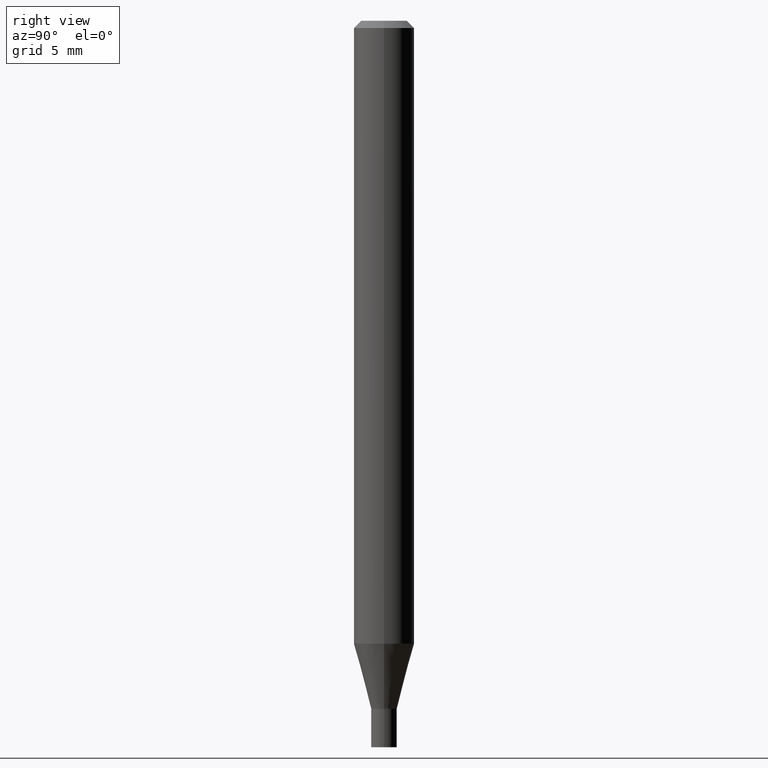
[diagram: clean part render]
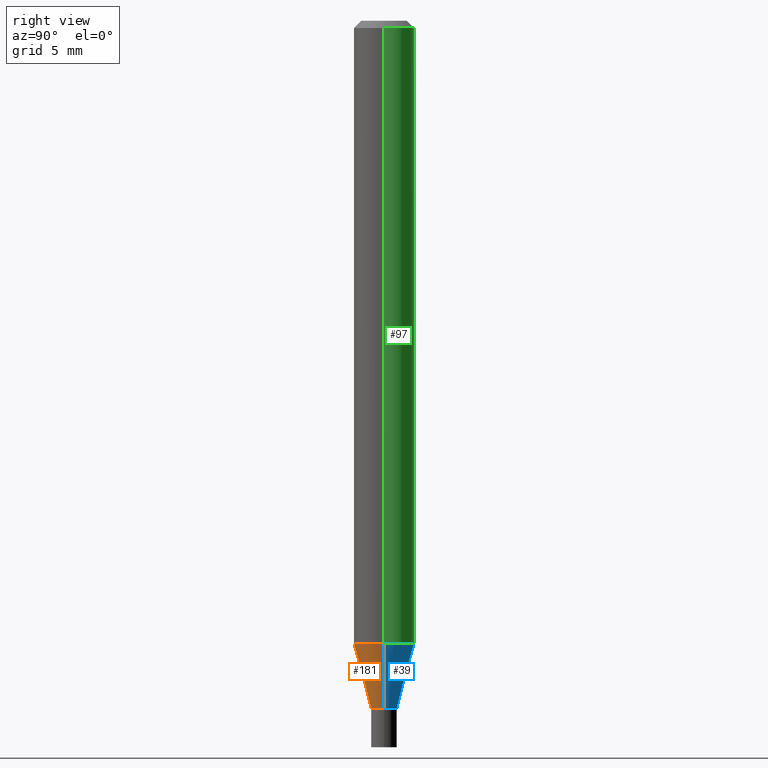
[diagram: same view with three faces highlighted in distinct colors, each labeled with its STEP entity id]
A machine part, right view with three faces highlighted in distinct colors.
Their STEP definitions:

[orange] entity #181 — the highlighted conical surface has half-angle 15 deg.
#32 = ORIENTED_EDGE ( 'NONE', *, *, #270, .F. ) ;
#42 = LINE ( 'NONE', #398, #353 ) ;
#66 = ORIENTED_EDGE ( 'NONE', *, *, #147, .F. ) ;
#67 = DIRECTION ( 'NONE',  ( 1.000000000000000000, -6.982962677686262766E-15, 0.000000000000000000 ) ) ;
#70 = ORIENTED_EDGE ( 'NONE', *, *, #101, .T. ) ;
#79 = LINE ( 'NONE', #112, #394 ) ;
#80 = DIRECTION ( 'NONE',  ( -0.2588190451025215721, 5.211531920934551831E-15, 0.9659258262890679791 ) ) ;
#81 = CONICAL_SURFACE ( 'NONE', #448, 0.02650000000000020048, 0.2617993877991502960 ) ;
#88 = DIRECTION ( 'NONE',  ( -2.445468806185136597E-29, 3.491481338843145583E-15, 1.000000000000000000 ) ) ;
#95 = CARTESIAN_POINT ( 'NONE',  ( 3.473788439185986455E-29, -4.959649241826688854E-15, -1.420500000000000096 ) ) ;
#99 = CARTESIAN_POINT ( 'NONE',  ( 3.145230341197711015E-29, -4.490555354818009189E-15, -1.286146170927521704 ) ) ;
#101 = EDGE_CURVE ( 'NONE', #462, #423, #344, .T. ) ;
#112 = CARTESIAN_POINT ( 'NONE',  ( 0.02650000000000020048, -5.144697752785376121E-15, -1.420500000000000096 ) ) ;
#119 = AXIS2_PLACEMENT_3D ( 'NONE', #95, #88, #373 ) ;
#145 = CARTESIAN_POINT ( 'NONE',  ( -0.06250000000000000000, -4.046466144967945784E-15, -1.286146170927521704 ) ) ;
#147 = EDGE_CURVE ( 'NONE', #311, #167, #202, .T. ) ;
#167 = VERTEX_POINT ( 'NONE', #203 ) ;
#181 = ADVANCED_FACE ( 'NONE', ( #466 ), #81, .T. ) ;
#202 = CIRCLE ( 'NONE', #298, 0.06250000000000000000 ) ;
#203 = CARTESIAN_POINT ( 'NONE',  ( 0.06250000000000000000, -4.926990522173400069E-15, -1.286146170927521704 ) ) ;
#270 = EDGE_CURVE ( 'NONE', #462, #311, #42, .T. ) ;
#278 = DIRECTION ( 'NONE',  ( 1.000000000000000000, -6.982962677686261977E-15, 0.000000000000000000 ) ) ;
#285 = ORIENTED_EDGE ( 'NONE', *, *, #375, .T. ) ;
#297 = CARTESIAN_POINT ( 'NONE',  ( -0.02650000000000020048, -4.408910780909102975E-15, -1.420500000000000096 ) ) ;
#298 = AXIS2_PLACEMENT_3D ( 'NONE', #99, #315, #67 ) ;
#311 = VERTEX_POINT ( 'NONE', #145 ) ;
#314 = CARTESIAN_POINT ( 'NONE',  ( 3.473788439185986455E-29, -4.959649241826688854E-15, -1.420500000000000096 ) ) ;
#315 = DIRECTION ( 'NONE',  ( -2.445468806185136597E-29, 3.491481338843145583E-15, 1.000000000000000000 ) ) ;
#318 = CARTESIAN_POINT ( 'NONE',  ( 0.02650000000000020048, -5.144697752785376121E-15, -1.420500000000000096 ) ) ;
#344 = CIRCLE ( 'NONE', #119, 0.02650000000000020048 ) ;
#348 = DIRECTION ( 'NONE',  ( -2.445468806185136597E-29, 3.491481338843145583E-15, 1.000000000000000000 ) ) ;
#353 = VECTOR ( 'NONE', #80, 39.37007874015748143 ) ;
#373 = DIRECTION ( 'NONE',  ( 1.000000000000000000, -6.982962677686261977E-15, 0.000000000000000000 ) ) ;
#375 = EDGE_CURVE ( 'NONE', #423, #167, #79, .T. ) ;
#383 = EDGE_LOOP ( 'NONE', ( #32, #70, #285, #66 ) ) ;
#394 = VECTOR ( 'NONE', #434, 39.37007874015748143 ) ;
#398 = CARTESIAN_POINT ( 'NONE',  ( -0.02650000000000020048, -4.771355416850260165E-15, -1.420500000000000096 ) ) ;
#423 = VERTEX_POINT ( 'NONE', #318 ) ;
#434 = DIRECTION ( 'NONE',  ( 0.2588190451025215721, 1.565188264969619995E-15, 0.9659258262890679791 ) ) ;
#448 = AXIS2_PLACEMENT_3D ( 'NONE', #314, #348, #278 ) ;
#462 = VERTEX_POINT ( 'NONE', #297 ) ;
#466 = FACE_OUTER_BOUND ( 'NONE', #383, .T. ) ;

[blue] entity #39 — the highlighted conical surface has half-angle 15 deg.
#27 = ORIENTED_EDGE ( 'NONE', *, *, #144, .F. ) ;
#39 = ADVANCED_FACE ( 'NONE', ( #288 ), #441, .T. ) ;
#42 = LINE ( 'NONE', #398, #353 ) ;
#52 = CARTESIAN_POINT ( 'NONE',  ( 3.473788439185986455E-29, -4.959649241826688854E-15, -1.420500000000000096 ) ) ;
#59 = AXIS2_PLACEMENT_3D ( 'NONE', #108, #243, #392 ) ;
#79 = LINE ( 'NONE', #112, #394 ) ;
#80 = DIRECTION ( 'NONE',  ( -0.2588190451025215721, 5.211531920934551831E-15, 0.9659258262890679791 ) ) ;
#108 = CARTESIAN_POINT ( 'NONE',  ( 3.473788439185986455E-29, -4.959649241826688854E-15, -1.420500000000000096 ) ) ;
#112 = CARTESIAN_POINT ( 'NONE',  ( 0.02650000000000020048, -5.144697752785376121E-15, -1.420500000000000096 ) ) ;
#133 = DIRECTION ( 'NONE',  ( 1.000000000000000000, -6.982962677686262766E-15, 0.000000000000000000 ) ) ;
#144 = EDGE_CURVE ( 'NONE', #167, #311, #365, .T. ) ;
#145 = CARTESIAN_POINT ( 'NONE',  ( -0.06250000000000000000, -4.046466144967945784E-15, -1.286146170927521704 ) ) ;
#146 = DIRECTION ( 'NONE',  ( 1.000000000000000000, -6.982962677686261977E-15, 0.000000000000000000 ) ) ;
#164 = ORIENTED_EDGE ( 'NONE', *, *, #270, .T. ) ;
#167 = VERTEX_POINT ( 'NONE', #203 ) ;
#203 = CARTESIAN_POINT ( 'NONE',  ( 0.06250000000000000000, -4.926990522173400069E-15, -1.286146170927521704 ) ) ;
#230 = EDGE_CURVE ( 'NONE', #423, #462, #345, .T. ) ;
#232 = AXIS2_PLACEMENT_3D ( 'NONE', #382, #459, #133 ) ;
#243 = DIRECTION ( 'NONE',  ( -2.445468806185136597E-29, 3.491481338843145583E-15, 1.000000000000000000 ) ) ;
#270 = EDGE_CURVE ( 'NONE', #462, #311, #42, .T. ) ;
#283 = ORIENTED_EDGE ( 'NONE', *, *, #230, .T. ) ;
#284 = AXIS2_PLACEMENT_3D ( 'NONE', #52, #401, #146 ) ;
#288 = FACE_OUTER_BOUND ( 'NONE', #439, .T. ) ;
#297 = CARTESIAN_POINT ( 'NONE',  ( -0.02650000000000020048, -4.408910780909102975E-15, -1.420500000000000096 ) ) ;
#311 = VERTEX_POINT ( 'NONE', #145 ) ;
#317 = ORIENTED_EDGE ( 'NONE', *, *, #375, .F. ) ;
#318 = CARTESIAN_POINT ( 'NONE',  ( 0.02650000000000020048, -5.144697752785376121E-15, -1.420500000000000096 ) ) ;
#345 = CIRCLE ( 'NONE', #59, 0.02650000000000020048 ) ;
#353 = VECTOR ( 'NONE', #80, 39.37007874015748143 ) ;
#365 = CIRCLE ( 'NONE', #232, 0.06250000000000000000 ) ;
#375 = EDGE_CURVE ( 'NONE', #423, #167, #79, .T. ) ;
#382 = CARTESIAN_POINT ( 'NONE',  ( 3.145230341197711015E-29, -4.490555354818009189E-15, -1.286146170927521704 ) ) ;
#392 = DIRECTION ( 'NONE',  ( 1.000000000000000000, -6.982962677686261977E-15, 0.000000000000000000 ) ) ;
#394 = VECTOR ( 'NONE', #434, 39.37007874015748143 ) ;
#398 = CARTESIAN_POINT ( 'NONE',  ( -0.02650000000000020048, -4.771355416850260165E-15, -1.420500000000000096 ) ) ;
#401 = DIRECTION ( 'NONE',  ( -2.445468806185136597E-29, 3.491481338843145583E-15, 1.000000000000000000 ) ) ;
#423 = VERTEX_POINT ( 'NONE', #318 ) ;
#434 = DIRECTION ( 'NONE',  ( 0.2588190451025215721, 1.565188264969619995E-15, 0.9659258262890679791 ) ) ;
#439 = EDGE_LOOP ( 'NONE', ( #283, #164, #27, #317 ) ) ;
#441 = CONICAL_SURFACE ( 'NONE', #284, 0.02650000000000020048, 0.2617993877991502960 ) ;
#459 = DIRECTION ( 'NONE',  ( -2.445468806185136597E-29, 3.491481338843145583E-15, 1.000000000000000000 ) ) ;
#462 = VERTEX_POINT ( 'NONE', #297 ) ;

[green] entity #97 — the highlighted cylindrical surface (edge-blend (fillet) strip) has radius 1.5875 mm, axis along (-0, 0, 1).
#35 = CARTESIAN_POINT ( 'NONE',  ( 0.06250000000000000000, -4.364351673553916694E-16, 3.047610484872459871E-30 ) ) ;
#37 = EDGE_LOOP ( 'NONE', ( #236, #303, #279, #169 ) ) ;
#89 = DIRECTION ( 'NONE',  ( -2.445468806185136597E-29, 3.491481338843145583E-15, 1.000000000000000000 ) ) ;
#97 = ADVANCED_FACE ( 'NONE', ( #254 ), #176, .T. ) ;
#133 = DIRECTION ( 'NONE',  ( 1.000000000000000000, -6.982962677686262766E-15, 0.000000000000000000 ) ) ;
#142 = VECTOR ( 'NONE', #242, 39.37007874015748143 ) ;
#144 = EDGE_CURVE ( 'NONE', #167, #311, #365, .T. ) ;
#145 = CARTESIAN_POINT ( 'NONE',  ( -0.06250000000000000000, -4.046466144967945784E-15, -1.286146170927521704 ) ) ;
#156 = DIRECTION ( 'NONE',  ( 1.000000000000000000, -6.982962677686266711E-15, 4.876176775795935793E-29 ) ) ;
#166 = LINE ( 'NONE', #426, #142 ) ;
#167 = VERTEX_POINT ( 'NONE', #203 ) ;
#169 = ORIENTED_EDGE ( 'NONE', *, *, #178, .F. ) ;
#170 = CARTESIAN_POINT ( 'NONE',  ( 0.06250000000000000000, -4.888073874380388472E-16, -0.01499999999999999944 ) ) ;
#172 = VERTEX_POINT ( 'NONE', #170 ) ;
#176 = CYLINDRICAL_SURFACE ( 'NONE', #221, 0.06250000000000000000 ) ;
#178 = EDGE_CURVE ( 'NONE', #167, #172, #211, .T. ) ;
#191 = AXIS2_PLACEMENT_3D ( 'NONE', #366, #218, #328 ) ;
#195 = EDGE_CURVE ( 'NONE', #311, #226, #166, .T. ) ;
#203 = CARTESIAN_POINT ( 'NONE',  ( 0.06250000000000000000, -4.926990522173400069E-15, -1.286146170927521704 ) ) ;
#211 = LINE ( 'NONE', #35, #277 ) ;
#218 = DIRECTION ( 'NONE',  ( -2.445468806185136597E-29, 3.491481338843145583E-15, 1.000000000000000000 ) ) ;
#221 = AXIS2_PLACEMENT_3D ( 'NONE', #325, #89, #156 ) ;
#226 = VERTEX_POINT ( 'NONE', #359 ) ;
#232 = AXIS2_PLACEMENT_3D ( 'NONE', #382, #459, #133 ) ;
#236 = ORIENTED_EDGE ( 'NONE', *, *, #144, .T. ) ;
#242 = DIRECTION ( 'NONE',  ( -2.445468806185136877E-29, 3.491481338843145188E-15, 1.000000000000000000 ) ) ;
#254 = FACE_OUTER_BOUND ( 'NONE', #37, .T. ) ;
#277 = VECTOR ( 'NONE', #465, 39.37007874015748143 ) ;
#279 = ORIENTED_EDGE ( 'NONE', *, *, #399, .F. ) ;
#303 = ORIENTED_EDGE ( 'NONE', *, *, #195, .T. ) ;
#311 = VERTEX_POINT ( 'NONE', #145 ) ;
#325 = CARTESIAN_POINT ( 'NONE',  ( 0.000000000000000000, 0.000000000000000000, 0.000000000000000000 ) ) ;
#328 = DIRECTION ( 'NONE',  ( 1.000000000000000000, -6.982962677686266711E-15, 0.000000000000000000 ) ) ;
#359 = CARTESIAN_POINT ( 'NONE',  ( -0.06250000000000000000, -1.827374577600265321E-15, -0.01499999999999999944 ) ) ;
#365 = CIRCLE ( 'NONE', #232, 0.06250000000000000000 ) ;
#366 = CARTESIAN_POINT ( 'NONE',  ( 3.668203209277705088E-31, -5.237222008264718399E-17, -0.01499999999999999944 ) ) ;
#382 = CARTESIAN_POINT ( 'NONE',  ( 3.145230341197711015E-29, -4.490555354818009189E-15, -1.286146170927521704 ) ) ;
#385 = CIRCLE ( 'NONE', #191, 0.06250000000000000000 ) ;
#399 = EDGE_CURVE ( 'NONE', #172, #226, #385, .T. ) ;
#426 = CARTESIAN_POINT ( 'NONE',  ( -0.06250000000000000000, 4.440892098500626162E-16, -3.074334431409316114E-30 ) ) ;
#459 = DIRECTION ( 'NONE',  ( -2.445468806185136597E-29, 3.491481338843145583E-15, 1.000000000000000000 ) ) ;
#465 = DIRECTION ( 'NONE',  ( -2.445468806185136877E-29, 3.491481338843145188E-15, 1.000000000000000000 ) ) ;